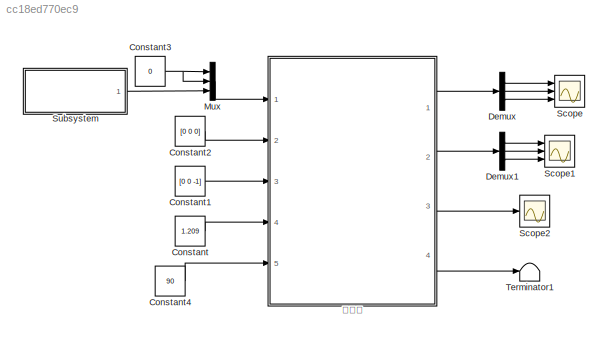
MODEL slx_cc18ed770ec9
KIND model
CONFIG AbsTol = auto
CONFIG EnableMultiTasking = off
CONFIG FixedStep = 0.001
CONFIG MaxStep = auto
CONFIG MinStep = auto
CONFIG RelTol = 1e-3
CONFIG SampleTimeConstraint = Unconstrained
CONFIG Solver = FixedStepAuto
CONFIG SolverName = FixedStepAuto
CONFIG StartTime = 0.0
CONFIG StopTime = 30
BLOCK [Constant] Constant
  SampleTime = 0
  Value = 1.209
BLOCK [Constant] Constant1
  SampleTime = 0
  Value = [0 0 -1]
BLOCK [Constant] Constant2
  SampleTime = 0
  Value = [0 0 0]
BLOCK [Constant] Constant3
  Value = 0
BLOCK [Constant] Constant4
  Value = 90
BLOCK [Demux] Demux
  DisplayOption = bar
  Outputs = 3
  Ports = [1, 3]
BLOCK [Demux] Demux1
  DisplayOption = bar
  Outputs = 3
  Ports = [1, 3]
BLOCK [Mux] Mux
  DisplayOption = bar
  Inputs = 3
  Ports = [3, 1]
BLOCK [Scope] Scope
  Floating = off
  NumInputPorts = 3
  Ports = [3]
  ScopeSpecificationString = Simulink.scopes.TimeScopeBlockCfg('CurrentConfiguration', extmgr.ConfigurationSet(extmgr.Configuration('Core','General UI',true),extmgr.Configuration('Core','Source UI',true),extmgr.Configuration('Sources','WiredSimulink',true),extmgr.Configuration('Visuals','Time Domain',true,'SerializedDisplays',{struct('MinYLimReal','-1.00000','MaxYLimReal','1.00000','YLabelReal','','MinYLimMag','0.00000','MaxY...<+2739ch>
BLOCK [Scope] Scope1
  Floating = off
  NumInputPorts = 3
  Ports = [3]
  ScopeSpecificationString = Simulink.scopes.TimeScopeBlockCfg('CurrentConfiguration', extmgr.ConfigurationSet(extmgr.Configuration('Core','General UI',true),extmgr.Configuration('Core','Source UI',true),extmgr.Configuration('Sources','WiredSimulink',true,'DataLoggingVariableName','ScopeData2'),extmgr.Configuration('Visuals','Time Domain',true,'SerializedDisplays',{struct('MinYLimReal','-0.0474','MaxYLimReal','0.42658','YLabe...<+1428ch>
BLOCK [Scope] Scope2
  Floating = off
  NumInputPorts = 1
  Ports = [1]
  ScopeSpecificationString = Simulink.scopes.TimeScopeBlockCfg('CurrentConfiguration', extmgr.ConfigurationSet(extmgr.Configuration('Core','General UI',true),extmgr.Configuration('Core','Source UI',true),extmgr.Configuration('Sources','WiredSimulink',true,'DataLoggingVariableName','ScopeData1'),extmgr.Configuration('Visuals','Time Domain',true,'SerializedDisplays',{struct('MinYLimReal','0.27918','MaxYLimReal','0.47918','YLabe...<+1391ch>
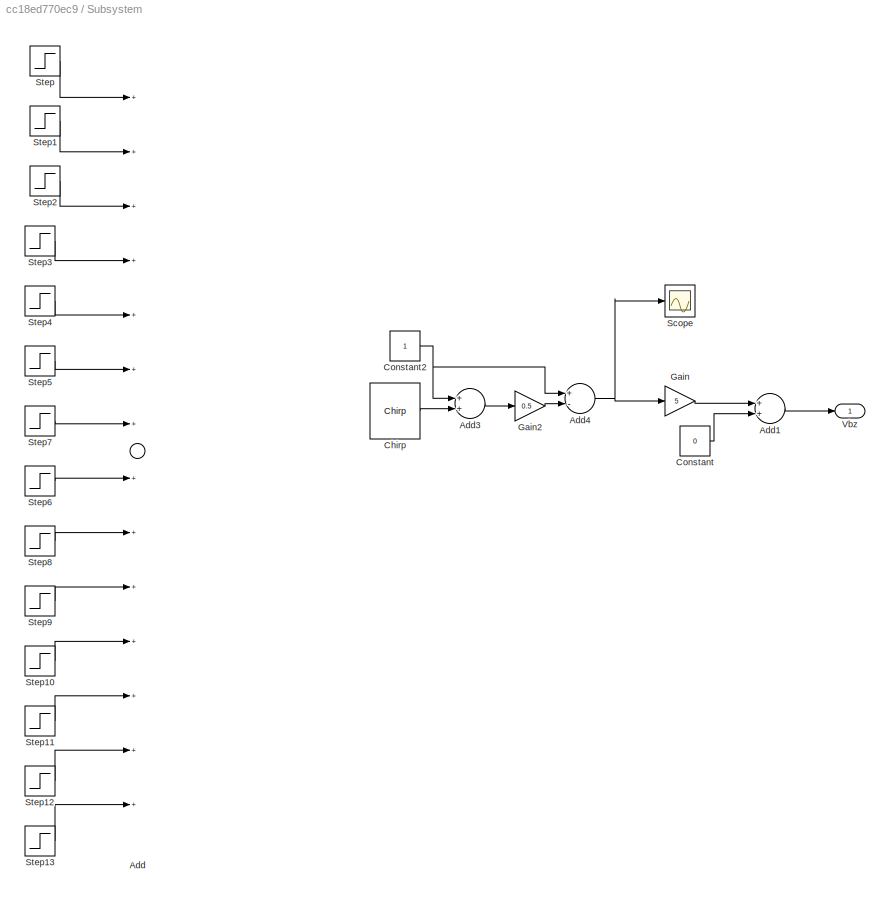
BLOCK [SubSystem] Subsystem
  Ports = [0, 1]
  RequestExecContextInheritance = off
BLOCK [Sum] Subsystem/Add
  Commented = on
  InputSameDT = off
  Inputs = ++++++++++++++
  OutDataTypeStr = Inherit: Inherit via internal rule
  Ports = [14, 1]
  SaturateOnIntegerOverflow = off
BLOCK [Sum] Subsystem/Add1
  InputSameDT = off
  OutDataTypeStr = Inherit: Inherit via internal rule
  Ports = [2, 1]
  SaturateOnIntegerOverflow = off
BLOCK [Sum] Subsystem/Add3
  InputSameDT = off
  OutDataTypeStr = Inherit: Inherit via internal rule
  Ports = [2, 1]
  SaturateOnIntegerOverflow = off
BLOCK [Sum] Subsystem/Add4
  InputSameDT = off
  Inputs = +-
  OutDataTypeStr = Inherit: Inherit via internal rule
  Ports = [2, 1]
  SaturateOnIntegerOverflow = off
BLOCK [Reference] Subsystem/Chirp  REF=dspsrcs4/Chirp
  Ports = [0, 1]
  SourceBlock = dspsrcs4/Chirp
  SourceProductBaseCode = DS
  SourceProductName = DSP System Toolbox
  SourceType = Chirp
BLOCK [Constant] Subsystem/Constant
  Value = 0
BLOCK [Constant] Subsystem/Constant2
BLOCK [Gain] Subsystem/Gain
  Gain = 5
  OutDataTypeStr = Inherit: Inherit via internal rule
  ParamDataTypeStr = Inherit: Inherit via internal rule
  SaturateOnIntegerOverflow = off
BLOCK [Gain] Subsystem/Gain2
  Gain = 0.5
  OutDataTypeStr = Inherit: Inherit via internal rule
  ParamDataTypeStr = Inherit: Inherit via internal rule
  SaturateOnIntegerOverflow = off
BLOCK [Scope] Subsystem/Scope
  Floating = off
  NumInputPorts = 1
  Ports = [1]
  ScopeSpecificationString = Simulink.scopes.TimeScopeBlockCfg('CurrentConfiguration', extmgr.ConfigurationSet(extmgr.Configuration('Core','General UI',true),extmgr.Configuration('Core','Source UI',true),extmgr.Configuration('Sources','WiredSimulink',true,'DataLoggingVariableName','ScopeData1'),extmgr.Configuration('Visuals','Time Domain',true,'SerializedDisplays',{struct('MinYLimReal','-0.125','MaxYLimReal','1.125','YLabelRe...<+1351ch>
BLOCK [Step] Subsystem/Step
  After = 1/14
  Commented = on
  SampleTime = 0
  Time = 2
BLOCK [Step] Subsystem/Step1
  After = 1/14
  Commented = on
  SampleTime = 0
  Time = 4
BLOCK [Step] Subsystem/Step10
  After = 1/14
  Commented = on
  SampleTime = 0
  Time = 22
BLOCK [Step] Subsystem/Step11
  After = 1/14
  Commented = on
  SampleTime = 0
  Time = 24
BLOCK [Step] Subsystem/Step12
  After = 1/14
  Commented = on
  SampleTime = 0
  Time = 26
BLOCK [Step] Subsystem/Step13
  After = 1/14
  Commented = on
  SampleTime = 0
  Time = 28
BLOCK [Step] Subsystem/Step2
  After = 1/14
  Commented = on
  SampleTime = 0
  Time = 6
BLOCK [Step] Subsystem/Step3
  After = 1/14
  Commented = on
  SampleTime = 0
  Time = 8
BLOCK [Step] Subsystem/Step4
  After = 1/14
  Commented = on
  SampleTime = 0
  Time = 10
BLOCK [Step] Subsystem/Step5
  After = 1/14
  Commented = on
  SampleTime = 0
  Time = 12
BLOCK [Step] Subsystem/Step6
  After = 1/14
  Commented = on
  SampleTime = 0
  Time = 16
BLOCK [Step] Subsystem/Step7
  After = 1/14
  Commented = on
  SampleTime = 0
  Time = 14
BLOCK [Step] Subsystem/Step8
  After = 1/14
  Commented = on
  SampleTime = 0
  Time = 18
BLOCK [Step] Subsystem/Step9
  After = 1/14
  Commented = on
  SampleTime = 0
  Time = 20
BLOCK [Outport] Subsystem/Vbz 
  IconDisplay = Port number
BLOCK [Terminator] Terminator1
BLOCK [ModelReference] 螺旋桨
  ModelNameDialog = TM1654P
  ModelReferenceVersion = 1.89
  Ports = [5, 4]
LINE Constant1:1 -> 螺旋桨:3
LINE Constant2:1 -> 螺旋桨:2
NET Constant3:1 -> Mux:1, Mux:2
LINE Constant4:1 -> 螺旋桨:5
LINE Constant:1 -> 螺旋桨:4
LINE Demux1:1 -> Scope1:1
LINE Demux1:2 -> Scope1:2
LINE Demux1:3 -> Scope1:3
LINE Demux:1 -> Scope:1
LINE Demux:2 -> Scope:2
LINE Demux:3 -> Scope:3
LINE Mux:1 -> 螺旋桨:1
LINE Subsystem/Add1:1 -> Subsystem/Vbz :1
LINE Subsystem/Add3:1 -> Subsystem/Gain2:1
NET Subsystem/Add4:1 -> Subsystem/Gain:1, Subsystem/Scope:1
LINE Subsystem/Chirp:1 -> Subsystem/Add3:2
NET Subsystem/Constant2:1 -> Subsystem/Add3:1, Subsystem/Add4:1
LINE Subsystem/Constant:1 -> Subsystem/Add1:2
LINE Subsystem/Gain2:1 -> Subsystem/Add4:2
LINE Subsystem/Gain:1 -> Subsystem/Add1:1
LINE Subsystem/Step10:1 -> Subsystem/Add:11
LINE Subsystem/Step11:1 -> Subsystem/Add:12
LINE Subsystem/Step12:1 -> Subsystem/Add:13
LINE Subsystem/Step13:1 -> Subsystem/Add:14
LINE Subsystem/Step1:1 -> Subsystem/Add:2
LINE Subsystem/Step2:1 -> Subsystem/Add:3
LINE Subsystem/Step3:1 -> Subsystem/Add:4
LINE Subsystem/Step4:1 -> Subsystem/Add:5
LINE Subsystem/Step5:1 -> Subsystem/Add:6
LINE Subsystem/Step6:1 -> Subsystem/Add:8
LINE Subsystem/Step7:1 -> Subsystem/Add:7
LINE Subsystem/Step8:1 -> Subsystem/Add:9
LINE Subsystem/Step9:1 -> Subsystem/Add:10
LINE Subsystem/Step:1 -> Subsystem/Add:1
LINE Subsystem:1 -> Mux:3
LINE 螺旋桨:1 -> Demux:1
LINE 螺旋桨:2 -> Demux1:1
LINE 螺旋桨:3 -> Scope2:1
LINE 螺旋桨:4 -> Terminator1:1
note: NET lines group one-source signal fan-out (src -> all destinations, sorted); 1:1 wires keep LINE
